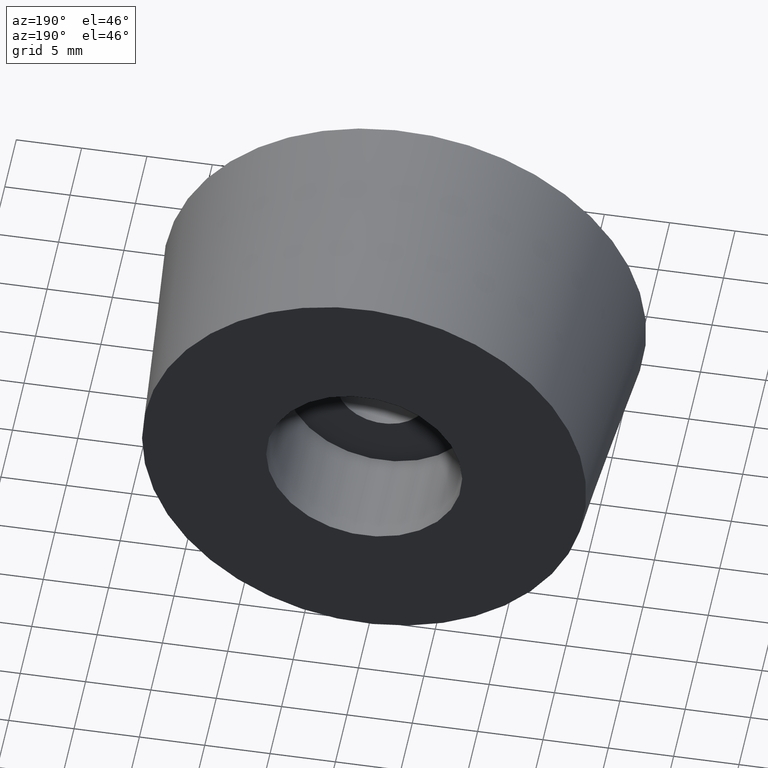
[diagram: clean part render]
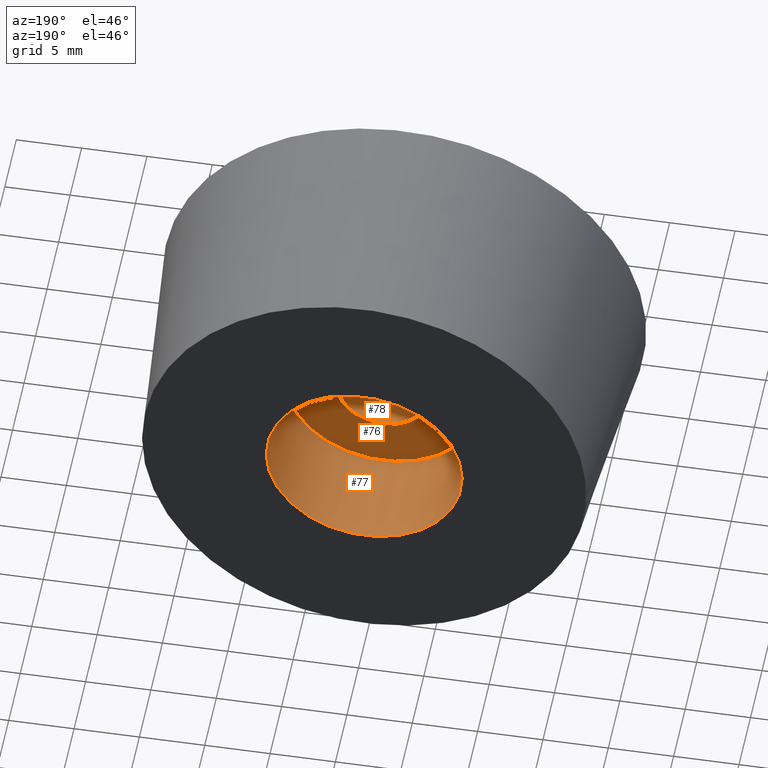
[diagram: same view with one multi-face feature highlighted, each face labeled with its STEP entity id]
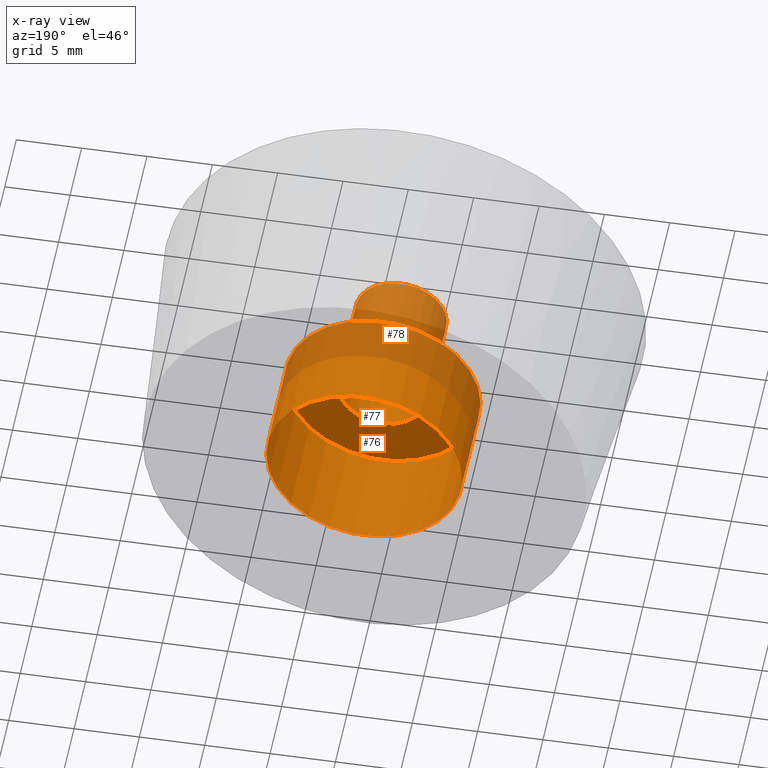
[diagram: x-ray of the same camera — body ghosted, the whole feature saturated]
A machine part, auxiliary view. The highlighted faces form ONE feature: a stepped (counterbored) hole: 2 coaxial cylindrical walls of radii 3.5 -> 7.5 mm joined by 1 annular planar shoulder face(s). The faces share edges in the B-rep.
The next image is the same camera in x-ray: the body ghosted and the whole hole feature saturated, so the bore chain is visible through the body.
Their STEP definitions:
[1] entity #77 (Cylinder):
#16=CYLINDRICAL_SURFACE('',#88,7.5);
#19=FACE_BOUND('',#33,.T.);
#24=FACE_OUTER_BOUND('',#32,.T.);
#32=EDGE_LOOP('',(#62));
#33=EDGE_LOOP('',(#63));
#42=CIRCLE('',#86,7.5);
#44=CIRCLE('',#89,7.5);
#48=VERTEX_POINT('',#128);
#50=VERTEX_POINT('',#133);
#54=EDGE_CURVE('',#48,#48,#42,.T.);
#56=EDGE_CURVE('',#50,#50,#44,.T.);
#62=ORIENTED_EDGE('',*,*,#56,.F.);
#63=ORIENTED_EDGE('',*,*,#54,.F.);
#77=ADVANCED_FACE('',(#24,#19),#16,.F.);
#86=AXIS2_PLACEMENT_3D('',#129,#102,#103);
#88=AXIS2_PLACEMENT_3D('',#132,#106,#107);
#89=AXIS2_PLACEMENT_3D('',#134,#108,#109);
#102=DIRECTION('center_axis',(0.,1.,0.));
#103=DIRECTION('ref_axis',(-1.,0.,0.));
#106=DIRECTION('center_axis',(0.,1.,0.));
#107=DIRECTION('ref_axis',(-1.,0.,0.));
#108=DIRECTION('center_axis',(0.,-1.,0.));
#109=DIRECTION('ref_axis',(-1.,0.,0.));
#128=CARTESIAN_POINT('',(-7.5,9.5,0.));
#129=CARTESIAN_POINT('Origin',(0.,9.5,0.));
#132=CARTESIAN_POINT('Origin',(0.,13.5,0.));
#133=CARTESIAN_POINT('',(-7.5,17.5,0.));
#134=CARTESIAN_POINT('Origin',(0.,17.5,0.));
[2] entity #78 (Cylinder):
#17=CYLINDRICAL_SURFACE('',#90,3.5);
#20=FACE_BOUND('',#35,.T.);
#25=FACE_OUTER_BOUND('',#34,.T.);
#34=EDGE_LOOP('',(#64));
#35=EDGE_LOOP('',(#65));
#43=CIRCLE('',#87,3.5);
#45=CIRCLE('',#91,3.5);
#49=VERTEX_POINT('',#130);
#51=VERTEX_POINT('',#136);
#55=EDGE_CURVE('',#49,#49,#43,.T.);
#57=EDGE_CURVE('',#51,#51,#45,.T.);
#64=ORIENTED_EDGE('',*,*,#55,.T.);
#65=ORIENTED_EDGE('',*,*,#57,.F.);
#78=ADVANCED_FACE('',(#25,#20),#17,.F.);
#87=AXIS2_PLACEMENT_3D('',#131,#104,#105);
#90=AXIS2_PLACEMENT_3D('',#135,#110,#111);
#91=AXIS2_PLACEMENT_3D('',#137,#112,#113);
#104=DIRECTION('center_axis',(0.,1.,0.));
#105=DIRECTION('ref_axis',(-1.,0.,0.));
#110=DIRECTION('center_axis',(0.,1.,0.));
#111=DIRECTION('ref_axis',(-1.,0.,0.));
#112=DIRECTION('center_axis',(0.,1.,0.));
#113=DIRECTION('ref_axis',(-1.,0.,0.));
#130=CARTESIAN_POINT('',(3.5,9.5,-4.28626379701574E-16));
#131=CARTESIAN_POINT('Origin',(0.,9.5,0.));
#135=CARTESIAN_POINT('Origin',(0.,9.5,0.));
#136=CARTESIAN_POINT('',(-3.5,1.5,0.));
#137=CARTESIAN_POINT('Origin',(0.,1.5,0.));
[3] entity #76 (Plane):
#18=FACE_BOUND('',#31,.T.);
#23=FACE_OUTER_BOUND('',#30,.T.);
#30=EDGE_LOOP('',(#60));
#31=EDGE_LOOP('',(#61));
#42=CIRCLE('',#86,7.5);
#43=CIRCLE('',#87,3.5);
#48=VERTEX_POINT('',#128);
#49=VERTEX_POINT('',#130);
#54=EDGE_CURVE('',#48,#48,#42,.T.);
#55=EDGE_CURVE('',#49,#49,#43,.T.);
#60=ORIENTED_EDGE('',*,*,#54,.T.);
#61=ORIENTED_EDGE('',*,*,#55,.F.);
#72=PLANE('',#85);
#76=ADVANCED_FACE('',(#23,#18),#72,.T.);
#85=AXIS2_PLACEMENT_3D('',#127,#100,#101);
#86=AXIS2_PLACEMENT_3D('',#129,#102,#103);
#87=AXIS2_PLACEMENT_3D('',#131,#104,#105);
#100=DIRECTION('center_axis',(0.,1.,0.));
#101=DIRECTION('ref_axis',(-1.,0.,0.));
#102=DIRECTION('center_axis',(0.,1.,0.));
#103=DIRECTION('ref_axis',(-1.,0.,0.));
#104=DIRECTION('center_axis',(0.,1.,0.));
#105=DIRECTION('ref_axis',(-1.,0.,0.));
#127=CARTESIAN_POINT('Origin',(0.,9.5,0.));
#128=CARTESIAN_POINT('',(-7.5,9.5,0.));
#129=CARTESIAN_POINT('Origin',(0.,9.5,0.));
#130=CARTESIAN_POINT('',(3.5,9.5,-4.28626379701574E-16));
#131=CARTESIAN_POINT('Origin',(0.,9.5,0.));